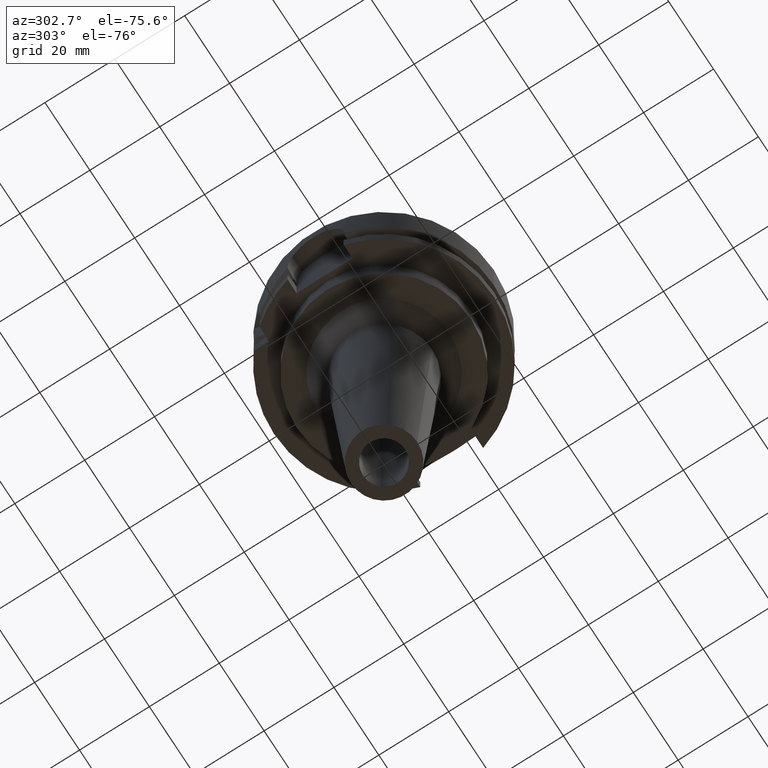
[diagram: clean part render]
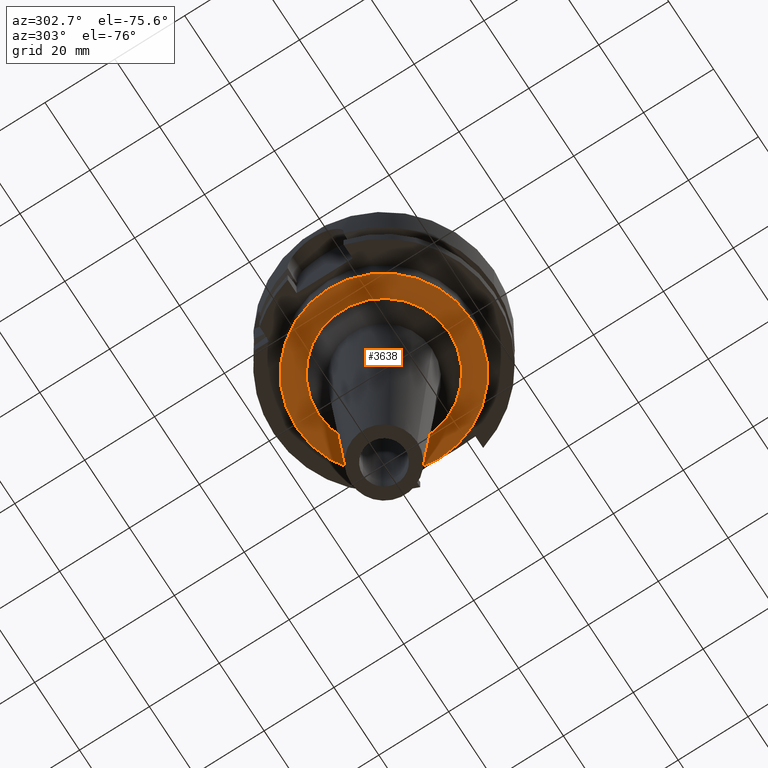
[diagram: same view with one face highlighted and labeled with its STEP entity id]
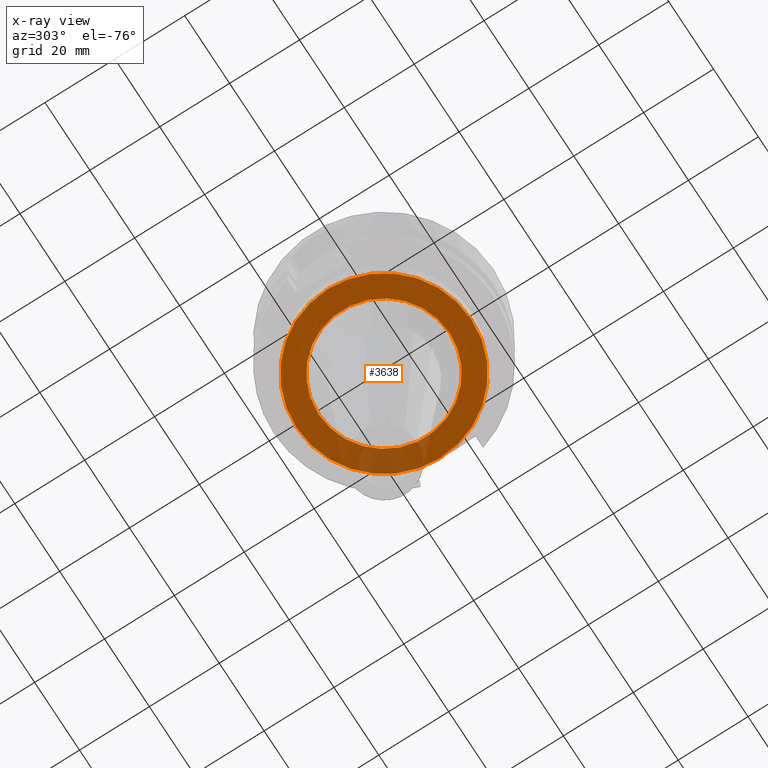
[diagram: x-ray of the same camera — body ghosted, the highlighted face saturated]
A machine part, auxiliary view. The second image highlights one B-rep face of the part: STEP entity #3638.
The next image is the same camera in x-ray: the body ghosted, the highlighted face saturated — about 16% of this face is hidden behind the body in this view.
In plain terms, the highlighted planar face has unit normal (0, 0, 1).
Its self-contained STEP definition (entity closure, byte-faithful):
#1627=CARTESIAN_POINT('',(0.E0,0.E0,-3.4E1));
#1628=DIRECTION('',(0.E0,0.E0,1.E0));
#1629=DIRECTION('',(0.E0,-1.E0,0.E0));
#1630=AXIS2_PLACEMENT_3D('',#1627,#1628,#1629);
#1635=CARTESIAN_POINT('',(0.E0,0.E0,-3.4E1));
#1636=DIRECTION('',(0.E0,0.E0,1.E0));
#1637=DIRECTION('',(0.E0,1.E0,0.E0));
#1638=AXIS2_PLACEMENT_3D('',#1635,#1636,#1637);
#1643=CARTESIAN_POINT('',(0.E0,0.E0,-3.4E1));
#1644=DIRECTION('',(0.E0,0.E0,-1.E0));
#1645=DIRECTION('',(0.E0,-1.E0,0.E0));
#1646=AXIS2_PLACEMENT_3D('',#1643,#1644,#1645);
#1651=CARTESIAN_POINT('',(0.E0,0.E0,-3.4E1));
#1652=DIRECTION('',(0.E0,0.E0,-1.E0));
#1653=DIRECTION('',(0.E0,1.E0,0.E0));
#1654=AXIS2_PLACEMENT_3D('',#1651,#1652,#1653);
#2375=CARTESIAN_POINT('',(0.E0,1.874503012193E1,-3.4E1));
#2376=VERTEX_POINT('',#2375);
#2377=CARTESIAN_POINT('',(0.E0,-1.874503012193E1,-3.4E1));
#2378=VERTEX_POINT('',#2377);
#2379=CARTESIAN_POINT('',(0.E0,-2.5E1,-3.4E1));
#2380=CARTESIAN_POINT('',(0.E0,2.5E1,-3.4E1));
#2381=VERTEX_POINT('',#2379);
#2382=VERTEX_POINT('',#2380);
#3623=CARTESIAN_POINT('',(0.E0,0.E0,-3.4E1));
#3624=DIRECTION('',(0.E0,0.E0,1.E0));
#3625=DIRECTION('',(0.E0,1.E0,0.E0));
#3626=AXIS2_PLACEMENT_3D('',#3623,#3624,#3625);
#3627=PLANE('',#3626);
#3628=ORIENTED_EDGE('',*,*,#3616,.T.);
#3629=ORIENTED_EDGE('',*,*,#3605,.T.);
#3630=EDGE_LOOP('',(#3628,#3629));
#3631=FACE_OUTER_BOUND('',#3630,.F.);
#3633=ORIENTED_EDGE('',*,*,#3632,.T.);
#3635=ORIENTED_EDGE('',*,*,#3634,.T.);
#3636=EDGE_LOOP('',(#3633,#3635));
#3637=FACE_BOUND('',#3636,.F.);
#1631=CIRCLE('',#1630,2.5E1);
#1639=CIRCLE('',#1638,2.5E1);
#1647=CIRCLE('',#1646,1.874503012193E1);
#1655=CIRCLE('',#1654,1.874503012193E1);
#3605=EDGE_CURVE('',#2382,#2381,#1639,.T.);
#3616=EDGE_CURVE('',#2381,#2382,#1631,.T.);
#3632=EDGE_CURVE('',#2378,#2376,#1647,.T.);
#3634=EDGE_CURVE('',#2376,#2378,#1655,.T.);
#3638=ADVANCED_FACE('',(#3631,#3637),#3627,.F.);